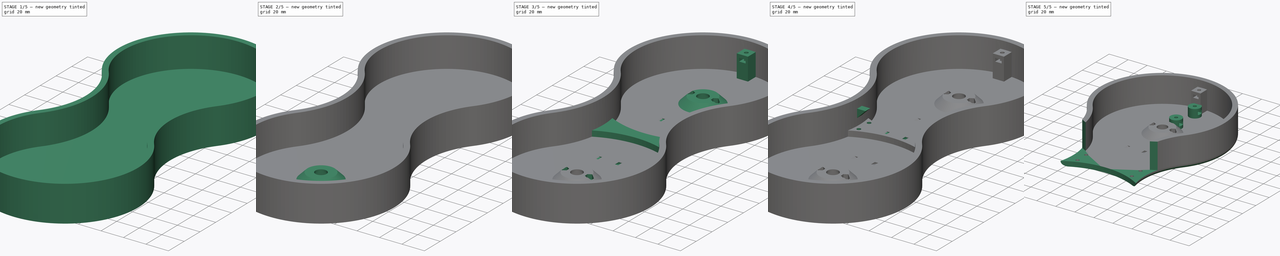
[diagram: build sequence overview — one tinted view per stage of 5, left to right]
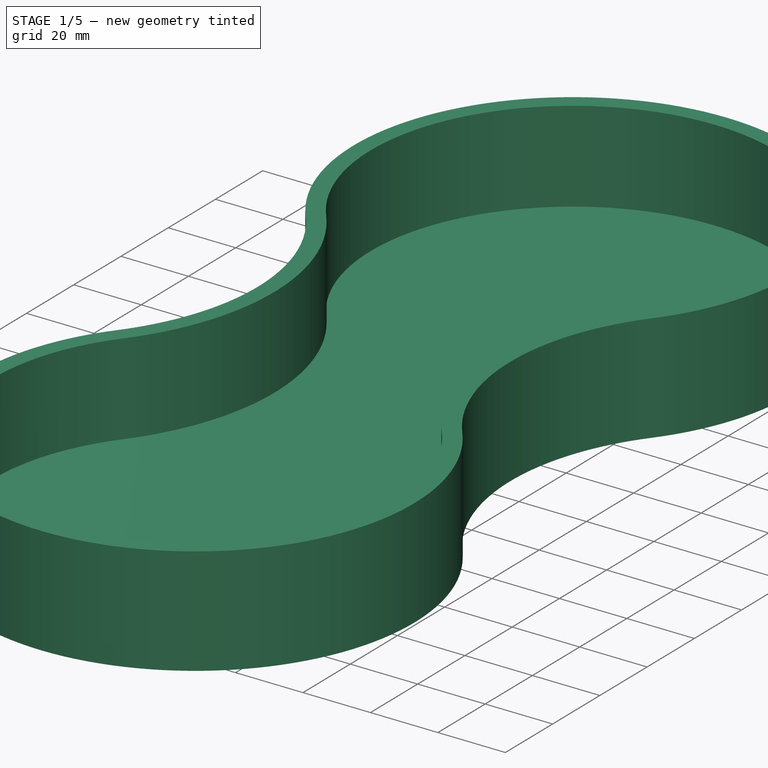
[diagram: stage 1 of 5 — iso view after this stage's code; geometry added in this stage tinted green]
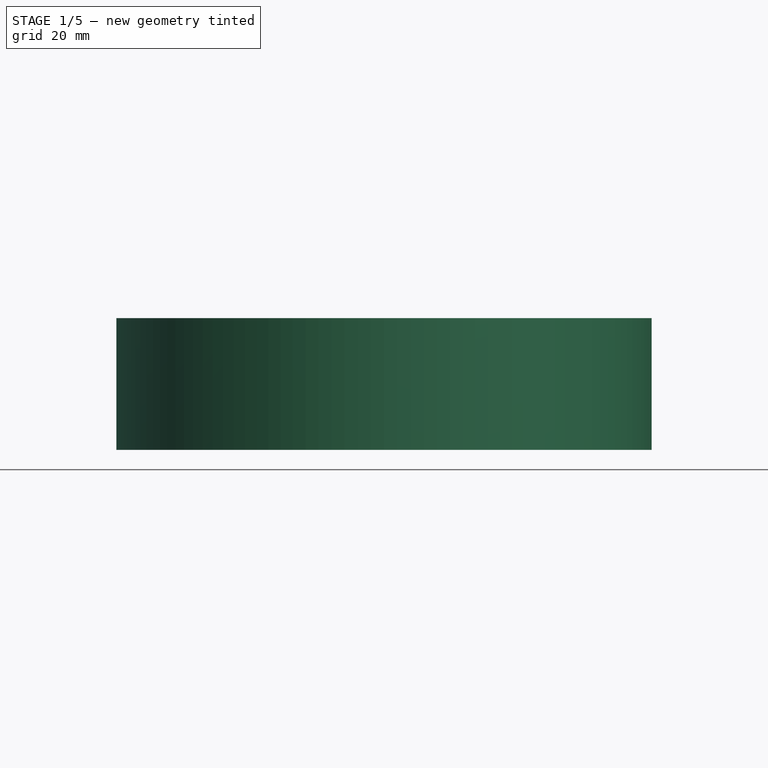
[diagram: stage 1 of 5 — front view after this stage's code; geometry added in this stage tinted green]
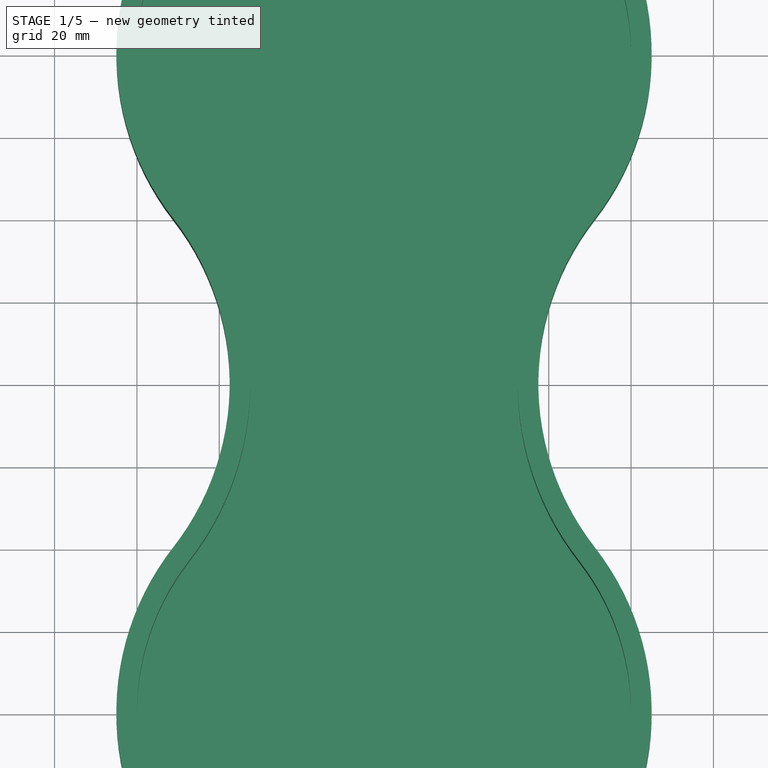
[diagram: stage 1 of 5 — top view after this stage's code; geometry added in this stage tinted green]
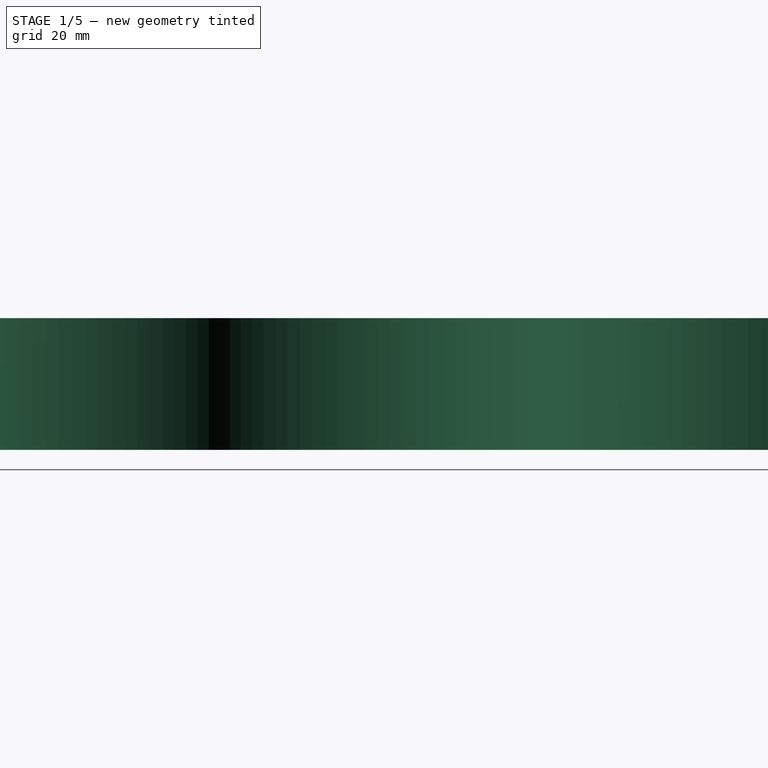
[diagram: stage 1 of 5 — right view after this stage's code; geometry added in this stage tinted green]
FCSTD DOCUMENT  (FreeCAD 0.19R24276 (Git))
Label: Art2BodyB_Splitted_B
License: All rights reserved
LicenseURL: http://en.wikipedia.org/wiki/All_rights_reserved
objects: Sketcher::SketchObject×21, PartDesign::Line×17, PartDesign::Pocket×13, PartDesign::CoordinateSystem×10, PartDesign::Pad×5, PartDesign::Plane×5, PartDesign::Groove×2, PartDesign::Body×2, PartDesign::Thickness×1, Spreadsheet::Sheet×1, PartDesign::Revolution×1, PartDesign::Mirrored×1, PartDesign::LinearPattern×1, PartDesign::PolarPattern×1, PartDesign::MultiTransform×1, PartDesign::Fillet×1, Part::Refine×1, PartDesign::FeatureBase×1
note: 107 computed .brp shape members not serialized (recipe doc carries the construction recipe); baked Part::Feature solids carry a one-line shape summary decoded from their .brp

FEATURE [Sketcher::SketchObject] Sketch
  FullyConstrained = true
  MapMode = 5
  Support = -> [XY_Plane]
  sketch-geometry (4):
    g0: ArcOfCircle CenterX=0 CenterY=0 CenterZ=0 NormalX=0 NormalY=0 NormalZ=1 AngleXU=0 Radius=65 StartAngle=2.47872 EndAngle=6.94606
    g1: ArcOfCircle CenterX=0 CenterY=160 CenterZ=0 NormalX=0 NormalY=0 NormalZ=1 AngleXU=0 Radius=65 StartAngle=5.62031 EndAngle=10.0877
    g2: ArcOfCircle CenterX=102.47 CenterY=80 CenterZ=0 NormalX=0 NormalY=0 NormalZ=1 AngleXU=0 Radius=65 StartAngle=2.47872 EndAngle=3.80447
    g3: ArcOfCircle CenterX=-102.47 CenterY=80 CenterZ=0 NormalX=0 NormalY=0 NormalZ=1 AngleXU=0 Radius=65 StartAngle=5.62031 EndAngle=6.94606
  constraints (11):
    c: Coincident(g0,g-1)
    c: PointOnObject(g1,g-2)
    c: Equal(g3,g0)
    c: Equal(g0,g2)
    c: Equal(g2,g1)
    c: Tangent(g2,g0) = 1.5708
    c: Tangent(g2,g1) = 1.5708
    c: Tangent(g3,g1) = 1.5708
    c: Tangent(g3,g0) = 1.5708
    c: Radius(g0) = 65
    c: DistanceY(g0,g1) = 160
FEATURE [PartDesign::Pad] Pad
  Direction = (1,1,1)
  Length = 32
  Length2 = 100
  Profile = -> Sketch
  Refine = true
  Type = 0
FEATURE [PartDesign::Thickness] Thickness
  Base = -> Pad [Face6]
  BaseFeature = -> Pad
  Intersection = false
  Join = 0
  Mode = 0
  Refine = true
  Reversed = true
  SupportTransform = false
  Value = 5
FEATURE [Sketcher::SketchObject] Sketch001
  ExternalGeometry = -> [Thickness]
  FullyConstrained = true
  MapMode = 5
  Placement = pos=(0,0,5) rot=(0,0,1;0rad)
  Support = -> [Thickness]
  sketch-geometry (4):
    g0: LineSegment StartX=-5 StartY=-59.7913 StartZ=0 EndX=-5 EndY=-50 EndZ=0
    g1: LineSegment StartX=-5 StartY=-50 StartZ=0 EndX=5 EndY=-50 EndZ=0
    g2: LineSegment StartX=5 StartY=-50 StartZ=0 EndX=5 EndY=-59.7913 EndZ=0
    g3: ArcOfCircle CenterX=0 CenterY=0 CenterZ=0 NormalX=0 NormalY=0 NormalZ=1 AngleXU=0 Radius=60 StartAngle=4.62896 EndAngle=4.79582
  constraints (11):
    c: Coincident(g0,g1)
    c: Coincident(g1,g2)
    c: Vertical(g2)
    c: Vertical(g0)
    c: Symmetric(g0,g1,g-2)
    c: DistanceX(g1,g1) = 10
    c: Coincident(g3,g-1)
    c: Coincident(g3,g0)
    c: Coincident(g3,g2)
    c: Equal(g3,g-3)
    c: DistanceY(g1,g3) = 50
FEATURE [PartDesign::Pad] Pad001
  BaseFeature = -> Thickness
  Direction = (1,1,1)
  Length = 20
  Length2 = 100
  Profile = -> Sketch001
  Refine = true
  Type = 0
FEATURE [Sketcher::SketchObject] Sketch002
  ExternalGeometry = -> [Pad001]
  FullyConstrained = true
  MapMode = 5
  Placement = pos=(0,0,25) rot=(0,0,1;0rad)
  Support = -> [Pad001]
  expr: Constraints[2] = Spreadsheet.M3BoltBodyRadius
  sketch-geometry (1):
    g0: Circle CenterX=0 CenterY=-55 CenterZ=0 NormalX=0 NormalY=0 NormalZ=1 AngleXU=0 Radius=1.7
  constraints (3):
    c: PointOnObject(g0,g-2)
    c: DistanceY(g0,g-3) = 5
    c: Radius(g0) = 1.7
FEATURE [Spreadsheet::Sheet] Spreadsheet
  cells = A2=M3BoltBodyRadius; B2(M3BoltBodyRadius)=1.7; A3=M3BoltHeadRadius; B3(M3BoltHeadRadius)=2.95; A4=M3NutCircumradius; B4(M3NutCircumradius)=3.35; A5=M3NutThickness; B5(M3NutThickness)=3; A6=Bearing655ZZBodyRadius; B6(Bearing655ZZBodyRadius)=8.199999999999999; A7=MagnetRadius; B7(MagnetRadius)=4.2; A8=MagnetThickness; B8(MagnetThickness)=1.1
FEATURE [PartDesign::Pocket] Pocket
  BaseFeature = -> Pad001
  Length = 16
  Length2 = 100
  Profile = -> Sketch002
  Refine = true
  Type = 0
FEATURE [PartDesign::Plane] DatumPlane
  AttachmentOffset = pos=(0,0,-4.5) rot=(0,0,1;0rad)
  Length = 168.771
  MapMode = 5
  Placement = pos=(0,0,20.5) rot=(0,0,1;0rad)
  ResizeMode = 0
  Support = -> [Pocket]
  Width = 328.56
FEATURE [Sketcher::SketchObject] Sketch003
  ExternalGeometry = -> [Pocket]
  FullyConstrained = true
  MapMode = 5
  Placement = pos=(0,0,20.5) rot=(0,0,1;0rad)
  Support = -> [DatumPlane]
  expr: Constraints[19] = Spreadsheet.M3NutCircumradius
  sketch-geometry (10):
    g0: LineSegment StartX=0 StartY=-58.35 StartZ=0 EndX=2.90119 EndY=-56.675 EndZ=0
    g1: LineSegment StartX=2.90119 StartY=-56.675 StartZ=0 EndX=2.90119 EndY=-53.325 EndZ=0
    g2: LineSegment StartX=2.90119 StartY=-53.325 StartZ=0 EndX=-2.0779e-12 EndY=-51.65 EndZ=0
    g3: LineSegment StartX=-2.0779e-12 StartY=-51.65 StartZ=0 EndX=-2.90119 EndY=-53.325 EndZ=0
    g4: LineSegment StartX=-2.90119 StartY=-53.325 StartZ=0 EndX=-2.90119 EndY=-56.675 EndZ=0
    g5: LineSegment StartX=-2.90119 StartY=-56.675 StartZ=0 EndX=0 EndY=-58.35 EndZ=0
    g6: Circle CenterX=0 CenterY=-55 CenterZ=0 NormalX=0 NormalY=0 NormalZ=1 AngleXU=0 Radius=3.35
    g7: LineSegment StartX=-2.90119 StartY=-56.675 StartZ=0 EndX=-2.90119 EndY=-46.675 EndZ=0
    g8: LineSegment StartX=-2.90119 StartY=-46.675 StartZ=0 EndX=2.90119 EndY=-46.675 EndZ=0
    g9: LineSegment StartX=2.90119 StartY=-46.675 StartZ=0 EndX=2.90119 EndY=-56.675 EndZ=0
  constraints (24):
    c: Coincident(g0,g1)
    c: Coincident(g1,g2)
    c: Coincident(g2,g3)
    c: Coincident(g3,g4)
    c: Coincident(g4,g5)
    c: Coincident(g5,g0)
    c: Equal(g0, g1-g5) x5
    c: PointOnObject(g0,g6)
    c: PointOnObject(g1,g6)
    c: PointOnObject(g2,g6)
    c: PointOnObject(g3,g6)
    c: PointOnObject(g4,g6)
    c: PointOnObject(g5,g6)
    c: Coincident(g6,g-3)
    c: PointOnObject(g5,g-2)
    c: Radius(g6) = 3.35
    c: Coincident(g5,g7)
    c: Vertical(g7)
    c: Coincident(g7,g8)
    c: Horizontal(g8)
    c: Coincident(g8,g9)
    c: Coincident(g9,g0)
    c: Vertical(g9)
    c: DistanceY(g9,g9) = 10
FEATURE [PartDesign::Pocket] Pocket001
  BaseFeature = -> Pocket
  Length = 3
  Length2 = 100
  Midplane = true
  Profile = -> Sketch003
  Refine = true
  Type = 0
  expr: Length = Spreadsheet.M3NutThickness
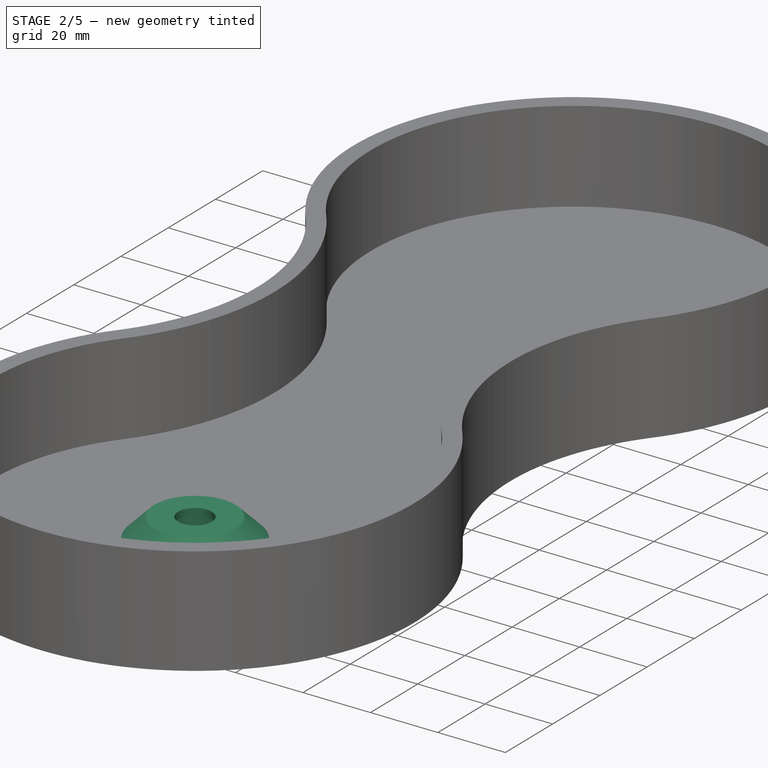
[diagram: stage 2 of 5 — iso view after this stage's code; geometry added in this stage tinted green]
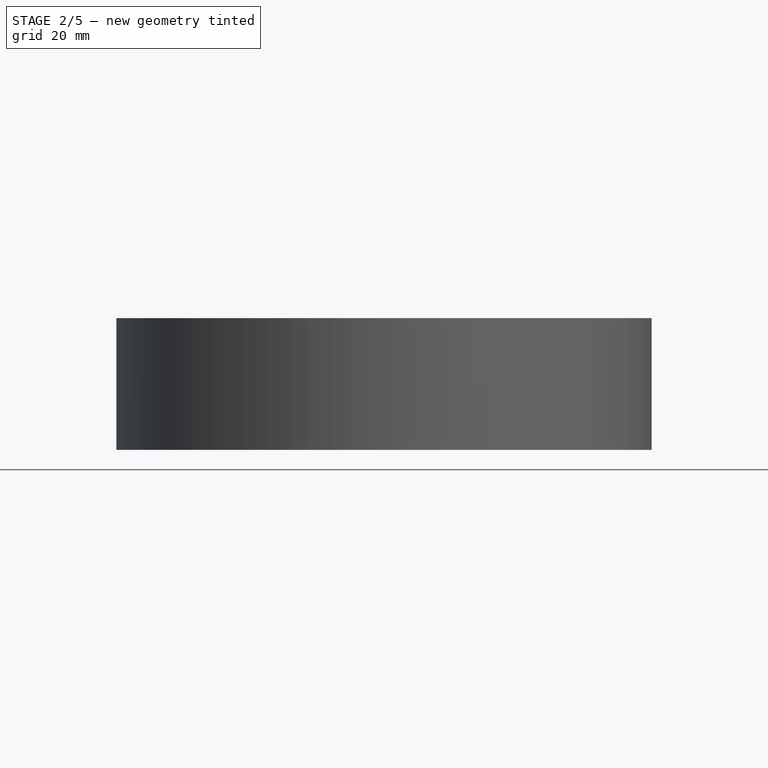
[diagram: stage 2 of 5 — front view after this stage's code; geometry added in this stage tinted green]
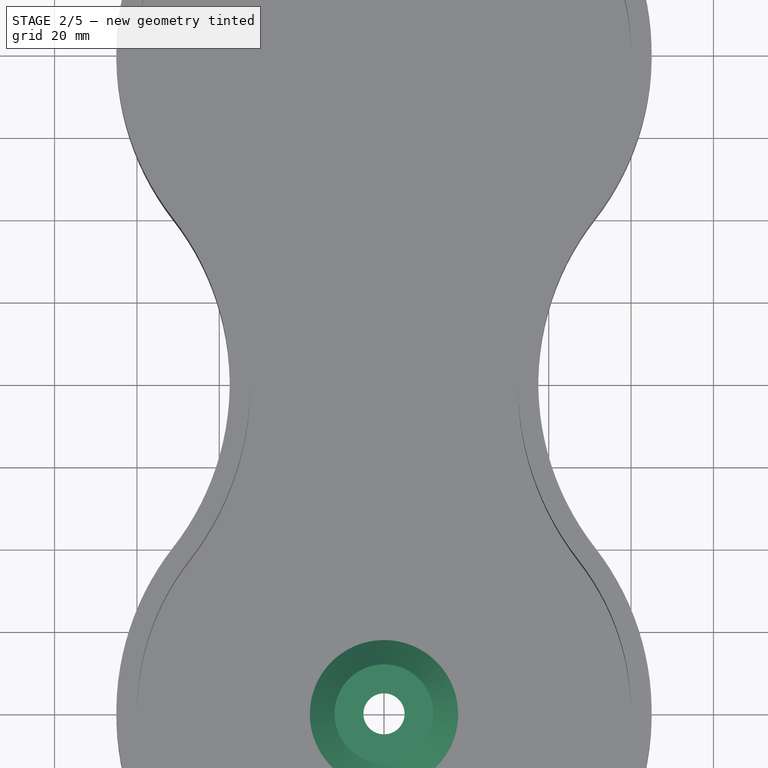
[diagram: stage 2 of 5 — top view after this stage's code; geometry added in this stage tinted green]
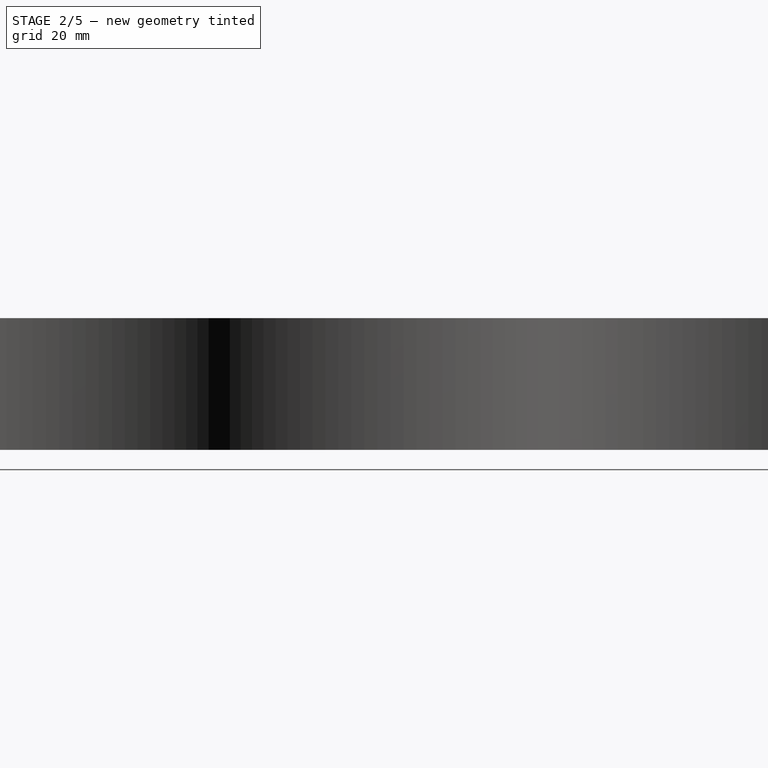
[diagram: stage 2 of 5 — right view after this stage's code; geometry added in this stage tinted green]
FEATURE [Sketcher::SketchObject] Sketch005
  ExternalGeometry = -> [Pocket001]
  FullyConstrained = true
  MapMode = 5
  Placement = pos=(0,0,0) rot=(1,0,0;1.5708rad)
  Support = -> [XZ_Plane]
  sketch-geometry (4):
    g0: LineSegment StartX=18 StartY=5 StartZ=0 EndX=12 EndY=11 EndZ=0
    g1: LineSegment StartX=12 StartY=11 StartZ=0 EndX=0 EndY=11 EndZ=0
    g2: LineSegment StartX=0 StartY=11 StartZ=0 EndX=0 EndY=5 EndZ=0
    g3: LineSegment StartX=0 StartY=5 StartZ=0 EndX=18 EndY=5 EndZ=0
  constraints (12):
    c: PointOnObject(g0,g-3)
    c: Coincident(g0,g1)
    c: Horizontal(g1)
    c: Coincident(g1,g2)
    c: Vertical(g2)
    c: Coincident(g2,g3)
    c: Horizontal(g3)
    c: PointOnObject(g1,g-2)
    c: DistanceX(g1,g1) = 12
    c: DistanceY(g2,g2) = 6
    c: Coincident(g3,g0)
    c: Angle(g0,g3) = 0.785398
FEATURE [PartDesign::Revolution] Revolution
  Angle = 360
  Axis = (0,2e-16,1)
  Base = (0,0,0)
  BaseFeature = -> Pocket001
  Profile = -> Sketch005
  ReferenceAxis = -> Sketch005 [V_Axis]
  Refine = true
  Reversed = true
FEATURE [Sketcher::SketchObject] Sketch006
  FullyConstrained = true
  MapMode = 5
  Placement = pos=(0,2.4e-15,11) rot=(0,0,1;0rad)
  Support = -> [Revolution]
  sketch-geometry (1):
    g0: Circle CenterX=0 CenterY=0 CenterZ=0 NormalX=0 NormalY=0 NormalZ=1 AngleXU=0 Radius=5
  constraints (2):
    c: Coincident(g0,g-1)
    c: Radius(g0) = 5
FEATURE [PartDesign::Pocket] Pocket002
  BaseFeature = -> Revolution
  Length = 5
  Length2 = 100
  Profile = -> Sketch006
  Refine = true
  Type = 1
FEATURE [Sketcher::SketchObject] Sketch007
  ExternalGeometry = -> [Pocket002]
  FullyConstrained = true
  MapMode = 5
  Placement = pos=(0,0,0) rot=(1,0,0;3.14159rad)
  Support = -> [Pocket002]
  sketch-geometry (1):
    g0: Circle CenterX=0 CenterY=0 CenterZ=0 NormalX=0 NormalY=0 NormalZ=1 AngleXU=0 Radius=8.2
  constraints (2):
    c: Coincident(g0,g-1)
    c: Radius(g0) = 8.2
FEATURE [PartDesign::Pocket] Pocket003
  BaseFeature = -> Pocket002
  Length = 9
  Length2 = 100
  Profile = -> Sketch007
  Refine = true
  Type = 0
FEATURE [Sketcher::SketchObject] Sketch008
  FullyConstrained = true
  MapMode = 5
  Placement = pos=(0,0,0) rot=(1,0,0;3.14159rad)
  Support = -> [Pocket003]
  sketch-geometry (4):
    g0: LineSegment StartX=-15.3 StartY=3.5 StartZ=0 EndX=15.3 EndY=3.5 EndZ=0
    g1: LineSegment StartX=15.3 StartY=3.5 StartZ=0 EndX=15.3 EndY=-3.5 EndZ=0
    g2: LineSegment StartX=15.3 StartY=-3.5 StartZ=0 EndX=-15.3 EndY=-3.5 EndZ=0
    g3: LineSegment StartX=-15.3 StartY=-3.5 StartZ=0 EndX=-15.3 EndY=3.5 EndZ=0
  constraints (10):
    c: Coincident(g0,g1)
    c: Coincident(g1,g2)
    c: Coincident(g2,g3)
    c: Coincident(g3,g0)
    c: Horizontal(g0)
    c: Vertical(g3)
    c: Symmetric(g1,g0,g-1)
    c: Symmetric(g1,g2,g-2)
    c: DistanceX(g2,g2) = 30.6
    c: DistanceY(g3,g3) = 7
FEATURE [PartDesign::Pocket] Pocket004
  BaseFeature = -> Pocket003
  Length = 4
  Length2 = 100
  Profile = -> Sketch008
  Refine = true
  Type = 0
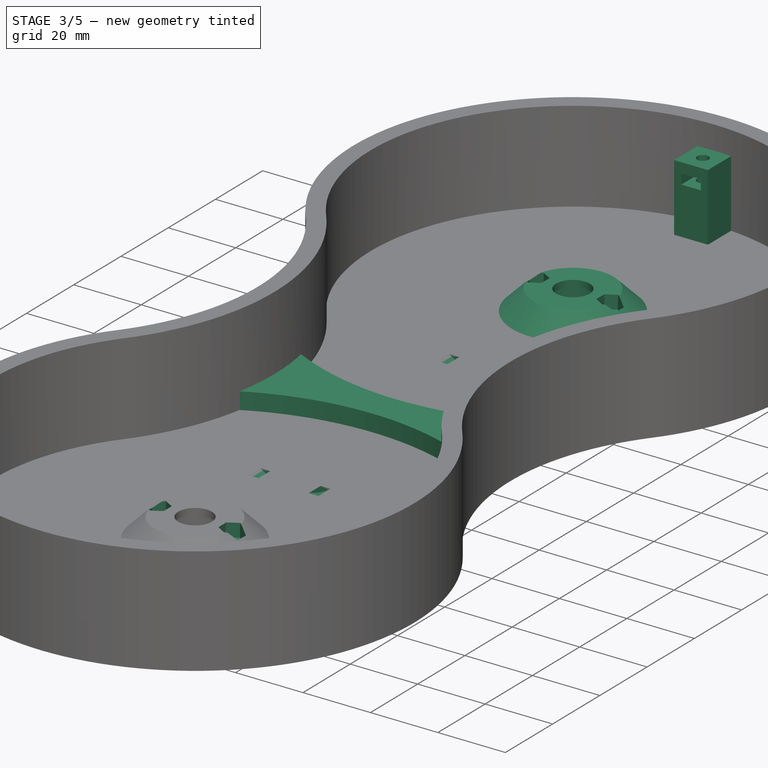
[diagram: stage 3 of 5 — iso view after this stage's code; geometry added in this stage tinted green]
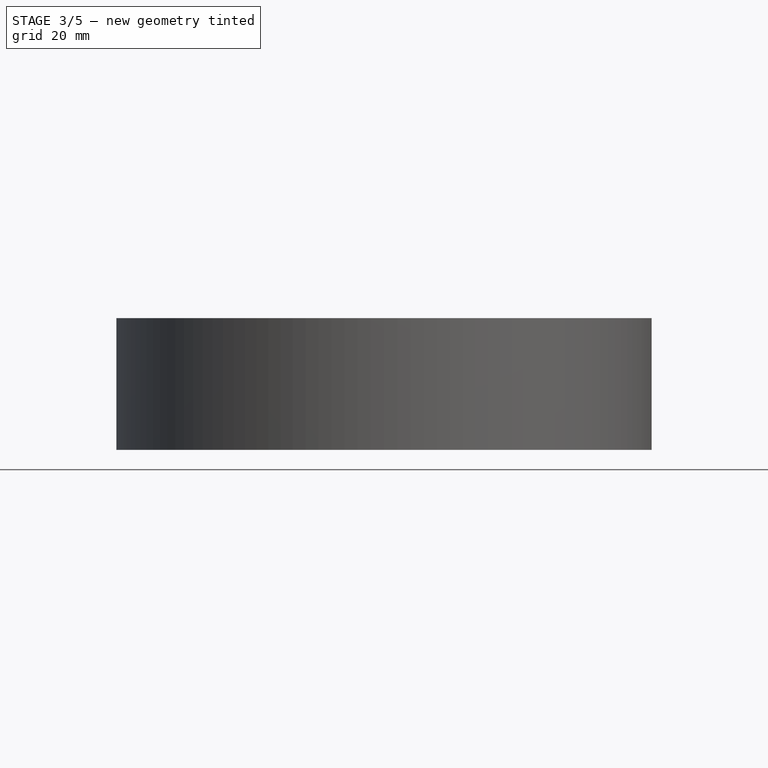
[diagram: stage 3 of 5 — front view after this stage's code; geometry added in this stage tinted green]
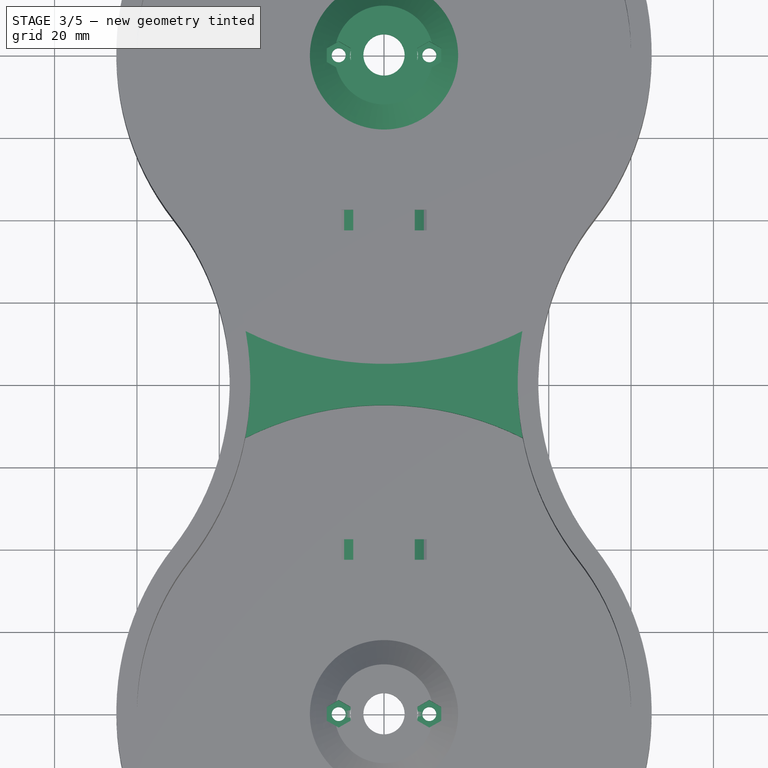
[diagram: stage 3 of 5 — top view after this stage's code; geometry added in this stage tinted green]
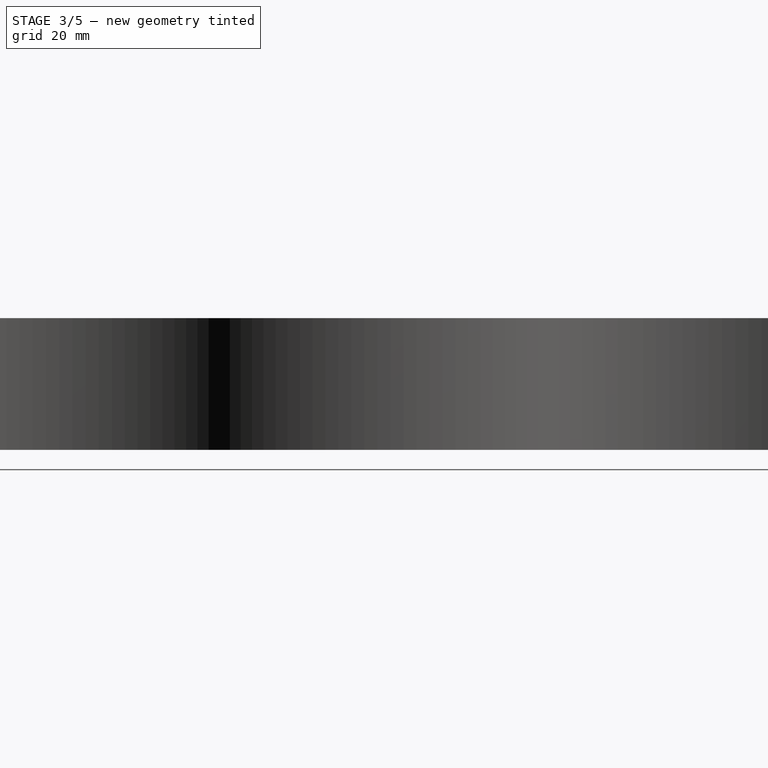
[diagram: stage 3 of 5 — right view after this stage's code; geometry added in this stage tinted green]
FEATURE [Sketcher::SketchObject] Sketch009
  FullyConstrained = true
  MapMode = 5
  Placement = pos=(0,0,4) rot=(1,0,0;3.14159rad)
  Support = -> [Pocket004]
  expr: Constraints[2] = Spreadsheet.M3BoltBodyRadius
  sketch-geometry (2):
    g0: Circle CenterX=-11 CenterY=0 CenterZ=0 NormalX=0 NormalY=0 NormalZ=1 AngleXU=0 Radius=1.7
    g1: Circle CenterX=11 CenterY=0 CenterZ=0 NormalX=0 NormalY=0 NormalZ=1 AngleXU=0 Radius=1.7
  constraints (5):
    c: PointOnObject(g0,g-1)
    c: Equal(g1,g0)
    c: Radius(g0) = 1.7
    c: DistanceX(g0,g1) = 22
    c: Symmetric(g1,g0,g-2)
FEATURE [PartDesign::Pocket] Pocket005
  BaseFeature = -> Pocket004
  Length = 5
  Length2 = 100
  Profile = -> Sketch009
  Refine = true
  Type = 1
FEATURE [Sketcher::SketchObject] Sketch010
  ExternalGeometry = -> [Pocket005]
  FullyConstrained = true
  MapMode = 5
  Placement = pos=(0,2.4e-15,11) rot=(0,0,1;0rad)
  Support = -> [Pocket005]
  expr: Constraints[39] = Spreadsheet.M3NutCircumradius
  sketch-geometry (14):
    g0: LineSegment StartX=-8.09881 StartY=1.675 StartZ=0 EndX=-11 EndY=3.35 EndZ=0
    g1: LineSegment StartX=-11 StartY=3.35 StartZ=0 EndX=-13.9012 EndY=1.675 EndZ=0
    g2: LineSegment StartX=-13.9012 StartY=1.675 StartZ=0 EndX=-13.9012 EndY=-1.675 EndZ=0
    g3: LineSegment StartX=-13.9012 StartY=-1.675 StartZ=0 EndX=-11 EndY=-3.35 EndZ=0
    g4: LineSegment StartX=-11 StartY=-3.35 StartZ=0 EndX=-8.09881 EndY=-1.675 EndZ=0
    g5: LineSegment StartX=-8.09881 StartY=-1.675 StartZ=0 EndX=-8.09881 EndY=1.675 EndZ=0
    g6: Circle CenterX=-11 CenterY=-2.4e-15 CenterZ=0 NormalX=0 NormalY=0 NormalZ=1 AngleXU=0 Radius=3.35
    g7: LineSegment StartX=8.09881 StartY=1.675 StartZ=0 EndX=8.09881 EndY=-1.675 EndZ=0
    g8: LineSegment StartX=8.09881 StartY=-1.675 StartZ=0 EndX=11 EndY=-3.35 EndZ=0
    g9: LineSegment StartX=11 StartY=-3.35 StartZ=0 EndX=13.9012 EndY=-1.675 EndZ=0
    g10: LineSegment StartX=13.9012 StartY=-1.675 StartZ=0 EndX=13.9012 EndY=1.675 EndZ=0
    g11: LineSegment StartX=13.9012 StartY=1.675 StartZ=0 EndX=11 EndY=3.35 EndZ=0
    g12: LineSegment StartX=11 StartY=3.35 StartZ=0 EndX=8.09881 EndY=1.675 EndZ=0
    g13: Circle CenterX=11 CenterY=-2.4e-15 CenterZ=0 NormalX=0 NormalY=0 NormalZ=1 AngleXU=0 Radius=3.35
  constraints (32):
    c: Coincident(g0,g1)
    c: Coincident(g1,g2)
    c: Coincident(g2,g3)
    c: Coincident(g3,g4)
    c: Coincident(g4,g5)
    c: Coincident(g5,g0)
    c: Equal(g0, g1-g5) x5
    c: PointOnObject(g0,g6)
    c: PointOnObject(g1,g6)
    c: PointOnObject(g2,g6)
    c: PointOnObject(g3,g6)
    c: PointOnObject(g4,g6)
    c: PointOnObject(g5,g6)
    c: Coincident(g6,g-3)
    c: Coincident(g7,g8)
    c: Coincident(g8,g9)
    c: Coincident(g9,g10)
    c: Coincident(g10,g11)
    c: Coincident(g11,g12)
    c: Coincident(g12,g7)
    c: Equal(g7, g8-g12) x5
    c: PointOnObject(g7,g13)
    c: PointOnObject(g8,g13)
    c: PointOnObject(g9,g13)
    c: PointOnObject(g10,g13)
    c: PointOnObject(g11,g13)
    c: PointOnObject(g12,g13)
    c: Coincident(g13,g-4)
    c: Vertical(g5)
    c: Vertical(g7)
    c: Equal(g13,g6)
    c: Radius(g6) = 3.35
FEATURE [PartDesign::Pocket] Pocket006
  BaseFeature = -> Pocket005
  Length = 4
  Length2 = 100
  Profile = -> Sketch010
  Refine = true
  Type = 0
FEATURE [PartDesign::Plane] DatumPlane001
  Length = 315.452
  MapMode = 5
  Placement = pos=(0,0,0) rot=(0.57735,0.57735,0.57735;2.0944rad)
  ResizeMode = 0
  Support = -> [YZ_Plane]
  Width = 82.7027
FEATURE [Sketcher::SketchObject] Sketch011
  ExternalGeometry = -> [Pocket006]
  FullyConstrained = true
  MapMode = 5
  Placement = pos=(0,0,0) rot=(0.57735,0.57735,0.57735;2.0944rad)
  Support = -> [DatumPlane001]
  sketch-geometry (4):
    g0: LineSegment StartX=37.5 StartY=3.25 StartZ=0 EndX=42.5 EndY=3.25 EndZ=0
    g1: LineSegment StartX=42.5 StartY=3.25 StartZ=0 EndX=42.5 EndY=1.75 EndZ=0
    g2: LineSegment StartX=42.5 StartY=1.75 StartZ=0 EndX=37.5 EndY=1.75 EndZ=0
    g3: LineSegment StartX=37.5 StartY=1.75 StartZ=0 EndX=37.5 EndY=3.25 EndZ=0
  constraints (12):
    c: Coincident(g0,g1)
    c: Coincident(g1,g2)
    c: Coincident(g2,g3)
    c: Coincident(g3,g0)
    c: Horizontal(g0)
    c: Horizontal(g2)
    c: Vertical(g1)
    c: Vertical(g3)
    c: DistanceY(g3,g3) = 1.5
    c: DistanceX(g2,g2) = 5
    c: DistanceX(g-1,g2) = 37.5
    c: DistanceY(g-1,g2) = 1.75
FEATURE [PartDesign::Line] DatumLine
  AttacherType = Attacher::AttachEngineLine
  AttachmentOffset = pos=(0,20,0) rot=(0,0,1;0rad)
  Length = 20
  MapMode = 29
  Placement = pos=(0,4.4e-15,20) rot=(0,0.707107,0.707107;3.14159rad)
  ResizeMode = 0
  Support = -> [Y_Axis]
FEATURE [PartDesign::Groove] Groove
  Angle = 360
  Axis = (1e-16,1,-2e-16)
  Base = (0,4.4e-15,20)
  BaseFeature = -> Pocket006
  Profile = -> Sketch011
  ReferenceAxis = -> DatumLine
  Refine = true
FEATURE [PartDesign::Plane] DatumPlane002
  AttachmentOffset = pos=(0,0,80) rot=(0,0,1;0rad)
  Length = 147.174
  MapMode = 2
  Placement = pos=(8.9e-15,80,20) rot=(0,0.707107,0.707107;3.14159rad)
  ResizeMode = 0
  Support = -> [DatumLine]
  Width = 74.2136
FEATURE [PartDesign::Mirrored] Mirrored
  BaseFeature = -> Groove
  MirrorPlane = -> DatumPlane002
  Originals = -> [Pad001,Pocket,Pocket001,Revolution,Pocket002,Pocket003,Pocket004,Pocket005,Pocket006,Groove]
  Refine = true
FEATURE [Sketcher::SketchObject] Sketch012
  ExternalGeometry = -> [Mirrored]
  FullyConstrained = true
  MapMode = 5
  Placement = pos=(0,0,5) rot=(0,0,1;0rad)
  Support = -> [Mirrored]
  sketch-geometry (4):
    g0: ArcOfCircle CenterX=102.47 CenterY=80 CenterZ=0 NormalX=0 NormalY=0 NormalZ=1 AngleXU=0 Radius=70 StartAngle=2.95493 EndAngle=3.32825
    g1: ArcOfCircle CenterX=-102.47 CenterY=80 CenterZ=0 NormalX=0 NormalY=0 NormalZ=1 AngleXU=0 Radius=70 StartAngle=6.09653 EndAngle=6.46984
    g2: ArcOfCircle CenterX=0 CenterY=0 CenterZ=0 NormalX=0 NormalY=0 NormalZ=1 AngleXU=0 Radius=75 StartAngle=1.10499 EndAngle=2.0366
    g3: ArcOfCircle CenterX=0 CenterY=160 CenterZ=0 NormalX=0 NormalY=0 NormalZ=1 AngleXU=0 Radius=75 StartAngle=4.24659 EndAngle=5.17819
  constraints (12):
    c: Coincident(g0,g-4)
    c: Coincident(g1,g-3)
    c: Equal(g1,g-3)
    c: Equal(g0,g-4)
    c: Coincident(g2,g-1)
    c: Coincident(g2,g1)
    c: Coincident(g2,g0)
    c: Coincident(g3,g-6)
    c: Coincident(g3,g1)
    c: Coincident(g3,g0)
    c: Equal(g2,g3)
    c: Radius(g3) = 75
FEATURE [PartDesign::Pad] Pad002
  BaseFeature = -> Mirrored
  Direction = (1,1,1)
  Length = 5
  Length2 = 100
  Profile = -> Sketch012
  Refine = true
  Type = 0
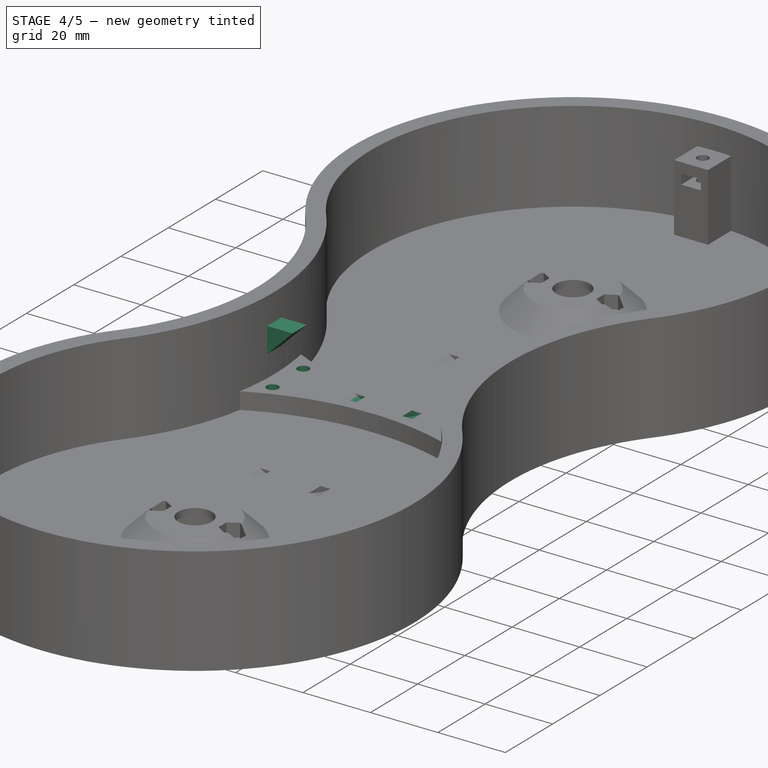
[diagram: stage 4 of 5 — iso view after this stage's code; geometry added in this stage tinted green]
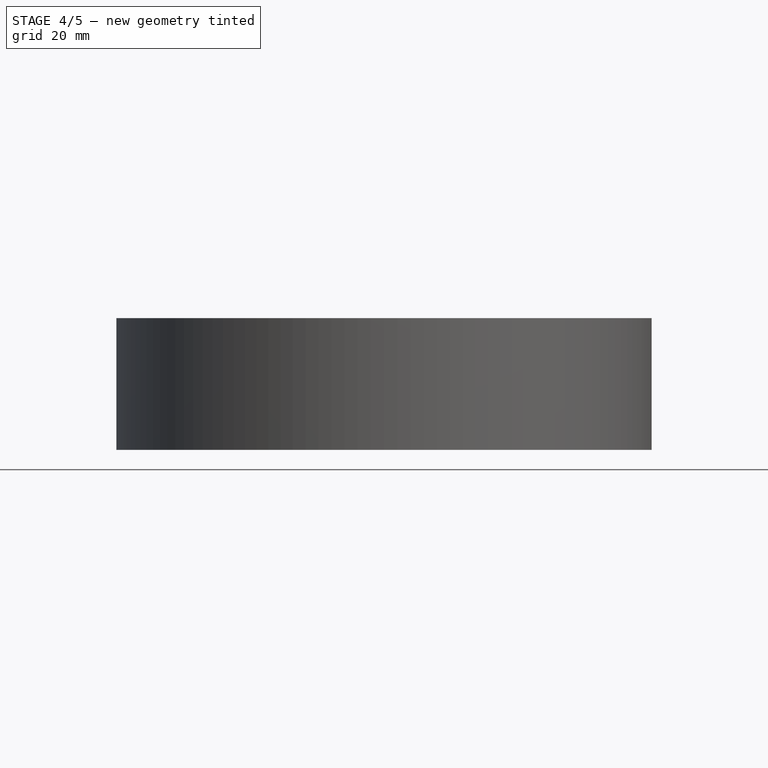
[diagram: stage 4 of 5 — front view after this stage's code; geometry added in this stage tinted green]
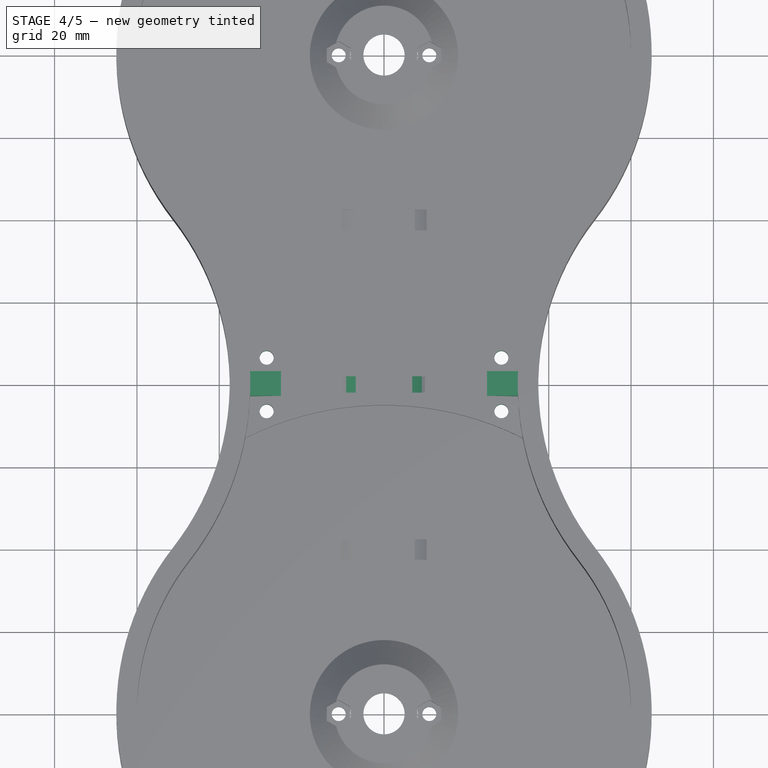
[diagram: stage 4 of 5 — top view after this stage's code; geometry added in this stage tinted green]
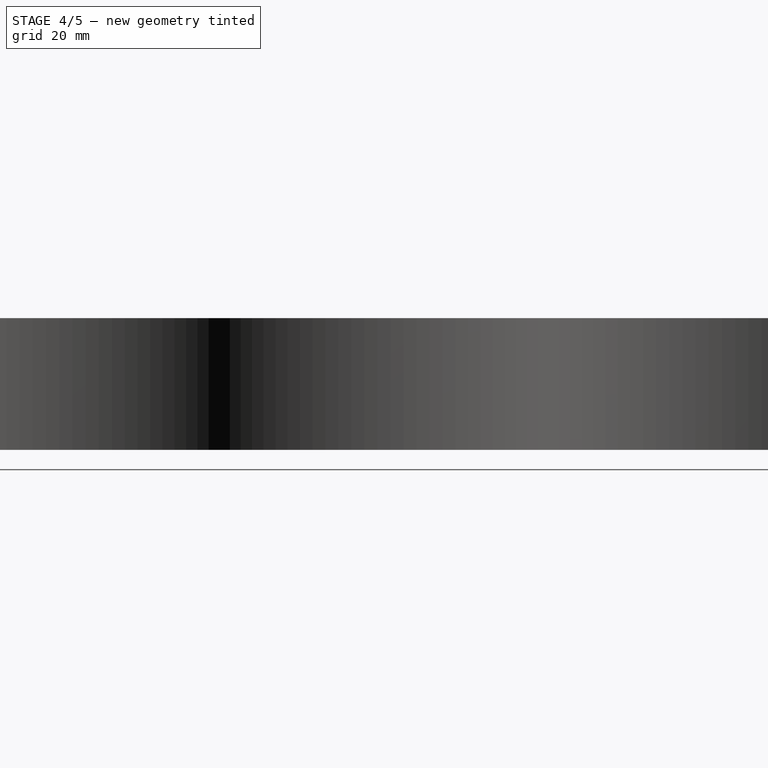
[diagram: stage 4 of 5 — right view after this stage's code; geometry added in this stage tinted green]
FEATURE [PartDesign::Plane] DatumPlane003
  Length = 315.452
  MapMode = 5
  Placement = pos=(0,0,0) rot=(0.57735,0.57735,0.57735;2.0944rad)
  ResizeMode = 0
  Support = -> [YZ_Plane]
  Width = 82.7027
FEATURE [Sketcher::SketchObject] Sketch013
  ExternalGeometry = -> [Pad002]
  FullyConstrained = true
  MapMode = 5
  Placement = pos=(0,0,0) rot=(0.57735,0.57735,0.57735;2.0944rad)
  Support = -> [YZ_Plane]
  sketch-geometry (4):
    g0: LineSegment StartX=78 StartY=8.5 StartZ=0 EndX=82 EndY=8.5 EndZ=0
    g1: LineSegment StartX=82 StartY=8.5 StartZ=0 EndX=82 EndY=7 EndZ=0
    g2: LineSegment StartX=82 StartY=7 StartZ=0 EndX=78 EndY=7 EndZ=0
    g3: LineSegment StartX=78 StartY=7 StartZ=0 EndX=78 EndY=8.5 EndZ=0
  constraints (12):
    c: Coincident(g0,g1)
    c: Coincident(g1,g2)
    c: Coincident(g2,g3)
    c: Coincident(g3,g0)
    c: Horizontal(g0)
    c: Horizontal(g2)
    c: Vertical(g1)
    c: Vertical(g3)
    c: DistanceX(g2,g2) = 4
    c: DistanceY(g1,g1) = 1.5
    c: DistanceX(g-1,g2) = 78
    c: DistanceY(g-1,g2) = 7
FEATURE [PartDesign::Line] DatumLine001
  AttacherType = Attacher::AttachEngineLine
  AttachmentOffset = pos=(0,25,0) rot=(0,0,1;0rad)
  Length = 20
  MapMode = 29
  Placement = pos=(0,5.6e-15,25) rot=(0,0.707107,0.707107;3.14159rad)
  ResizeMode = 0
  Support = -> [Y_Axis]
FEATURE [PartDesign::Groove] Groove001
  Angle = 360
  Axis = (1e-16,1,-2e-16)
  Base = (0,5.6e-15,25)
  BaseFeature = -> Pad002
  Profile = -> Sketch013
  ReferenceAxis = -> DatumLine001
  Refine = true
FEATURE [Sketcher::SketchObject] Sketch014
  FullyConstrained = true
  MapMode = 5
  Placement = pos=(0,0,10) rot=(0,0,1;0rad)
  Support = -> [Groove001]
  expr: Constraints[17] = Spreadsheet.M3BoltBodyRadius
  sketch-geometry (8):
    g0: LineSegment StartX=-28.5 StartY=86.5 StartZ=0 EndX=28.5 EndY=86.5 EndZ=0
    g1: LineSegment StartX=28.5 StartY=86.5 StartZ=0 EndX=28.5 EndY=73.5 EndZ=0
    g2: LineSegment StartX=28.5 StartY=73.5 StartZ=0 EndX=-28.5 EndY=73.5 EndZ=0
    g3: LineSegment StartX=-28.5 StartY=73.5 StartZ=0 EndX=-28.5 EndY=86.5 EndZ=0
    g4: Circle CenterX=-28.5 CenterY=86.5 CenterZ=0 NormalX=0 NormalY=0 NormalZ=1 AngleXU=0 Radius=1.7
    g5: Circle CenterX=-28.5 CenterY=73.5 CenterZ=0 NormalX=0 NormalY=0 NormalZ=1 AngleXU=0 Radius=1.7
    g6: Circle CenterX=28.5 CenterY=86.5 CenterZ=0 NormalX=0 NormalY=0 NormalZ=1 AngleXU=0 Radius=1.7
    g7: Circle CenterX=28.5 CenterY=73.5 CenterZ=0 NormalX=0 NormalY=0 NormalZ=1 AngleXU=0 Radius=1.7
  constraints (19):
    c: Coincident(g0,g1)
    c: Coincident(g1,g2)
    c: Coincident(g2,g3)
    c: Coincident(g3,g0)
    c: Horizontal(g0)
    c: Vertical(g1)
    c: Vertical(g3)
    c: Symmetric(g2,g1,g-2)
    c: DistanceY(g3,g3) = 13
    c: DistanceX(g2,g2) = 57
    c: Coincident(g4,g0)
    c: Coincident(g5,g2)
    c: Coincident(g6,g0)
    c: Coincident(g7,g1)
    c: Equal(g7,g6)
    c: Equal(g6,g4)
    c: Equal(g4,g5)
    c: Radius(g5) = 1.7
    c: DistanceY(g-1,g7) = 73.5
FEATURE [PartDesign::Pocket] Pocket007
  BaseFeature = -> Groove001
  Length = 5
  Length2 = 100
  Profile = -> Sketch014
  Refine = true
  Type = 1
FEATURE [Sketcher::SketchObject] Sketch015
  ExternalGeometry = -> [Pocket007]
  FullyConstrained = true
  MapMode = 5
  Placement = pos=(0,0,0) rot=(1,0,0;3.14159rad)
  Support = -> [Pocket007]
  expr: Constraints[7] = Spreadsheet.M3BoltHeadRadius
  sketch-geometry (4):
    g0: Circle CenterX=-28.5 CenterY=-73.5 CenterZ=0 NormalX=0 NormalY=0 NormalZ=1 AngleXU=0 Radius=2.95
    g1: Circle CenterX=-28.5 CenterY=-86.5 CenterZ=0 NormalX=0 NormalY=0 NormalZ=1 AngleXU=0 Radius=2.95
    g2: Circle CenterX=28.5 CenterY=-86.5 CenterZ=0 NormalX=0 NormalY=0 NormalZ=1 AngleXU=0 Radius=2.95
    g3: Circle CenterX=28.5 CenterY=-73.5 CenterZ=0 NormalX=0 NormalY=0 NormalZ=1 AngleXU=0 Radius=2.95
  constraints (8):
    c: Coincident(g0,g-3)
    c: Coincident(g1,g-4)
    c: Coincident(g2,g-6)
    c: Coincident(g3,g-5)
    c: Equal(g3,g2)
    c: Equal(g2,g1)
    c: Equal(g1,g0)
    c: Radius(g0) = 2.95
FEATURE [PartDesign::Pocket] Pocket008
  BaseFeature = -> Pocket007
  Length = 2.9
  Length2 = 100
  Profile = -> Sketch015
  Refine = true
  Type = 0
FEATURE [Sketcher::SketchObject] Sketch016
  ExternalGeometry = -> [Pocket008]
  FullyConstrained = true
  MapMode = 5
  Placement = pos=(8.9e-15,80,20) rot=(0,0.707107,0.707107;3.14159rad)
  Support = -> [DatumPlane002]
  sketch-geometry (6):
    g0: LineSegment StartX=-35 StartY=4 StartZ=0 EndX=-25 EndY=4 EndZ=0
    g1: LineSegment StartX=-25 StartY=4 StartZ=0 EndX=-35 EndY=-6 EndZ=0
    g2: LineSegment StartX=-35 StartY=-6 StartZ=0 EndX=-35 EndY=4 EndZ=0
    g3: LineSegment StartX=25 StartY=4 StartZ=0 EndX=35 EndY=4 EndZ=0
    g4: LineSegment StartX=35 StartY=4 StartZ=0 EndX=35 EndY=-6 EndZ=0
    g5: LineSegment StartX=35 StartY=-6 StartZ=0 EndX=25 EndY=4 EndZ=0
  constraints (17):
    c: Horizontal(g0)
    c: Coincident(g0,g1)
    c: Coincident(g1,g2)
    c: Coincident(g2,g0)
    c: Vertical(g2)
    c: Horizontal(g3)
    c: Coincident(g3,g4)
    c: Vertical(g4)
    c: Coincident(g4,g5)
    c: Coincident(g5,g3)
    c: DistanceX(g0,g3) = 50
    c: Symmetric(g0,g3,g-2)
    c: Equal(g0,g3)
    c: Equal(g2,g4)
    c: Angle(g0,g1) = 0.785398
    c: DistanceX(g0,g0) = 10
    c: DistanceY(g0,g-3) = 8
FEATURE [PartDesign::Pad] Pad003
  BaseFeature = -> Pocket008
  Direction = (1,1,1)
  Length = 6
  Length2 = 100
  Midplane = true
  Profile = -> Sketch016
  Refine = true
  Type = 0
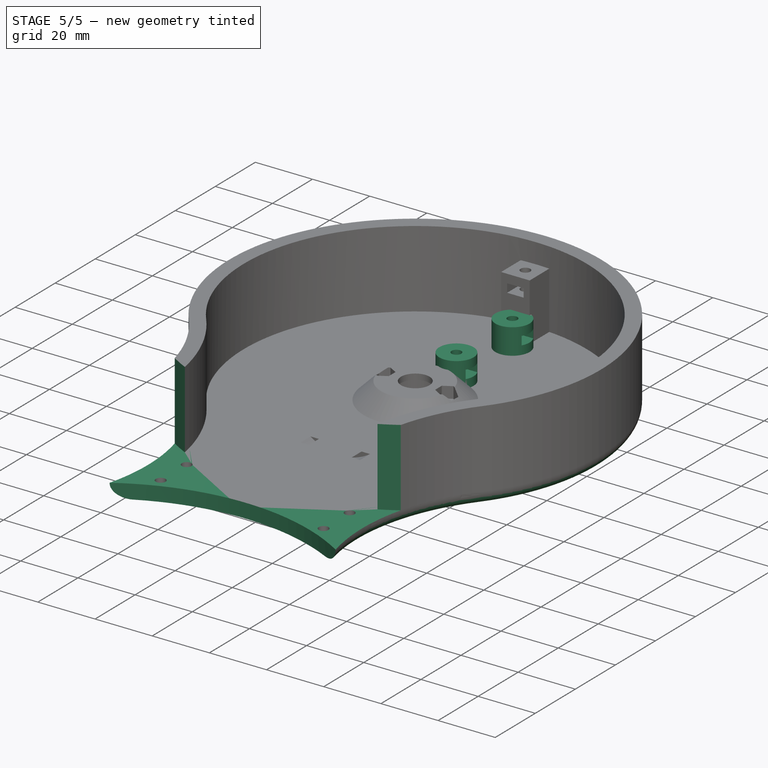
[diagram: stage 5 of 5 — iso view after this stage's code; geometry added in this stage tinted green]
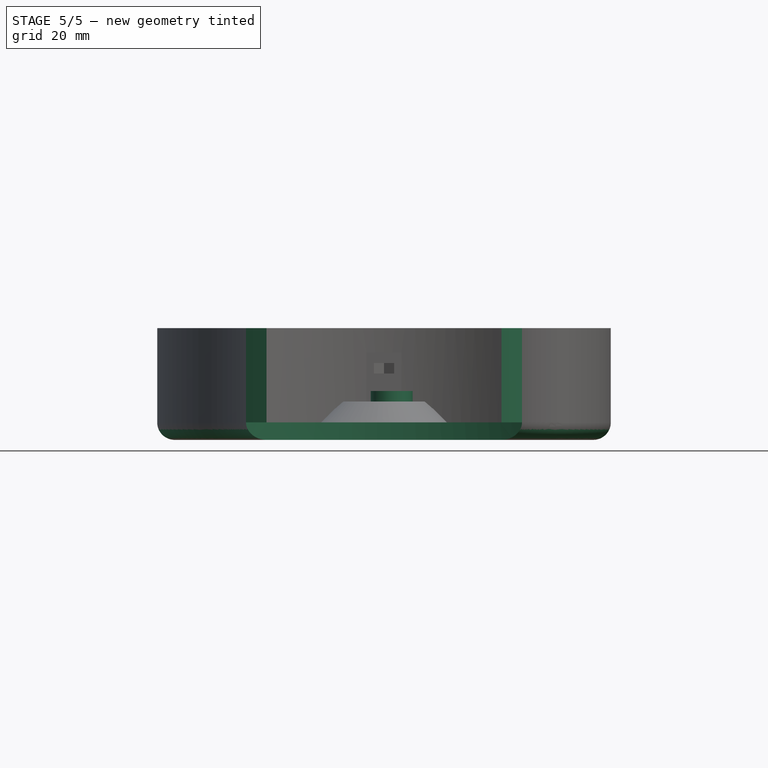
[diagram: stage 5 of 5 — front view after this stage's code; geometry added in this stage tinted green]
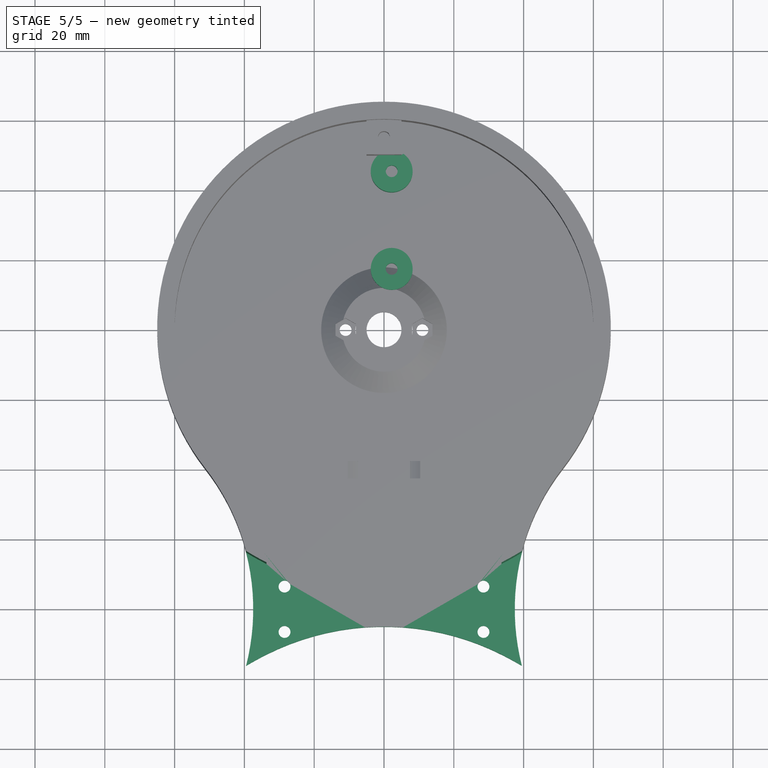
[diagram: stage 5 of 5 — top view after this stage's code; geometry added in this stage tinted green]
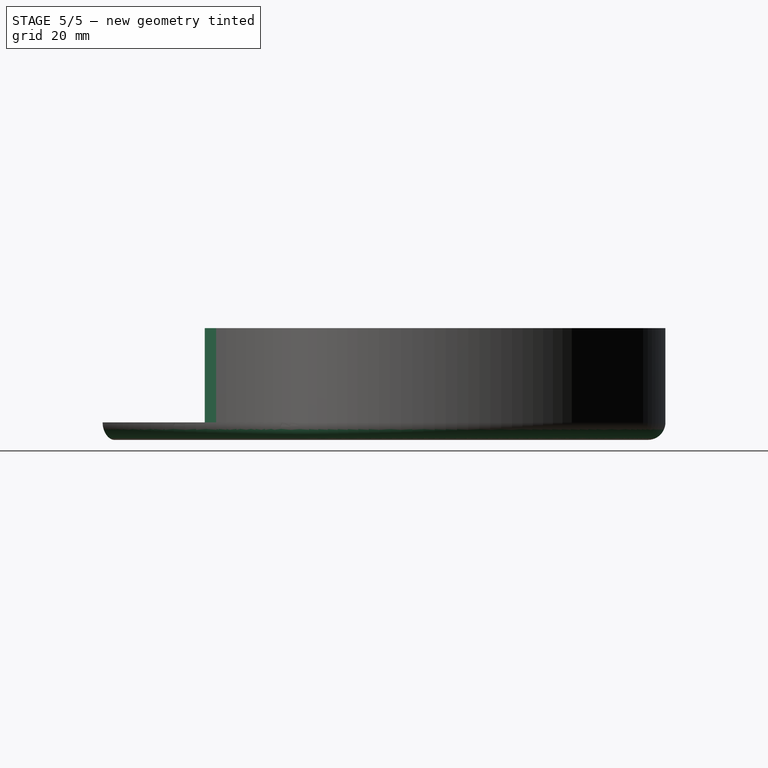
[diagram: stage 5 of 5 — right view after this stage's code; geometry added in this stage tinted green]
FEATURE [Sketcher::SketchObject] Sketch017
  FullyConstrained = true
  MapMode = 5
  Placement = pos=(0,0,5) rot=(0,0,1;0rad)
  Support = -> [Pad003]
  expr: Constraints[1] = Spreadsheet.M3BoltBodyRadius
  sketch-geometry (2):
    g0: Circle CenterX=-2.2 CenterY=-45.4 CenterZ=0 NormalX=0 NormalY=0 NormalZ=1 AngleXU=0 Radius=6
    g1: Circle CenterX=-2.2 CenterY=-45.4 CenterZ=0 NormalX=0 NormalY=0 NormalZ=1 AngleXU=0 Radius=1.7
  constraints (5):
    c: Coincident(g1,g0)
    c: Radius(g1) = 1.7
    c: Radius(g0) = 6
    c: DistanceY(g0,g-1) = 45.4
    c: DistanceX(g0,g-1) = 2.2
FEATURE [PartDesign::Pad] Pad004
  BaseFeature = -> Pad003
  Direction = (1,1,1)
  Length = 9
  Length2 = 100
  Profile = -> Sketch017
  Refine = true
  Type = 0
FEATURE [PartDesign::Plane] DatumPlane004
  AttachmentOffset = pos=(0,0,-4.5) rot=(0,0,1;0rad)
  Length = 168.771
  MapMode = 5
  Placement = pos=(0,0,9.5) rot=(0,0,1;0rad)
  ResizeMode = 0
  Support = -> [Pad004]
  Width = 328.56
FEATURE [Sketcher::SketchObject] Sketch018
  ExternalGeometry = -> [Pad004]
  FullyConstrained = true
  MapMode = 5
  Placement = pos=(0,0,9.5) rot=(0,0,1;0rad)
  Support = -> [DatumPlane004]
  expr: Constraints[19] = Spreadsheet.M3NutCircumradius
  sketch-geometry (10):
    g0: LineSegment StartX=1.15 StartY=-45.4 StartZ=0 EndX=-0.525 EndY=-42.4988 EndZ=0
    g1: LineSegment StartX=-0.525 StartY=-42.4988 StartZ=0 EndX=-3.875 EndY=-42.4988 EndZ=0
    g2: LineSegment StartX=-3.875 StartY=-42.4988 StartZ=0 EndX=-5.55 EndY=-45.4 EndZ=0
    g3: LineSegment StartX=-5.55 StartY=-45.4 StartZ=0 EndX=-3.875 EndY=-48.3012 EndZ=0
    g4: LineSegment StartX=-3.875 StartY=-48.3012 StartZ=0 EndX=-0.525 EndY=-48.3012 EndZ=0
    g5: LineSegment StartX=-0.525 StartY=-48.3012 StartZ=0 EndX=1.15 EndY=-45.4 EndZ=0
    g6: Circle CenterX=-2.2 CenterY=-45.4 CenterZ=0 NormalX=0 NormalY=0 NormalZ=1 AngleXU=0 Radius=3.35
    g7: LineSegment StartX=-0.525 StartY=-42.4988 StartZ=0 EndX=-10.525 EndY=-42.4988 EndZ=0
    g8: LineSegment StartX=-10.525 StartY=-42.4988 StartZ=0 EndX=-10.525 EndY=-48.3012 EndZ=0
    g9: LineSegment StartX=-10.525 StartY=-48.3012 StartZ=0 EndX=-0.525 EndY=-48.3012 EndZ=0
  constraints (24):
    c: Coincident(g0,g1)
    c: Coincident(g1,g2)
    c: Coincident(g2,g3)
    c: Coincident(g3,g4)
    c: Coincident(g4,g5)
    c: Coincident(g5,g0)
    c: Equal(g0, g1-g5) x5
    c: PointOnObject(g0,g6)
    c: PointOnObject(g1,g6)
    c: PointOnObject(g2,g6)
    c: PointOnObject(g3,g6)
    c: PointOnObject(g4,g6)
    c: PointOnObject(g5,g6)
    c: Coincident(g6,g-3)
    c: Horizontal(g1)
    c: Radius(g6) = 3.35
    c: Coincident(g0,g7)
    c: Horizontal(g7)
    c: Coincident(g7,g8)
    c: Coincident(g8,g9)
    c: Coincident(g9,g5)
    c: Horizontal(g9)
    c: Vertical(g8)
    c: DistanceX(g7,g7) = 10
FEATURE [PartDesign::Pocket] Pocket009
  BaseFeature = -> Pad004
  Length = 3
  Length2 = 100
  Midplane = true
  Profile = -> Sketch018
  Refine = true
  Type = 0
  expr: Length = Spreadsheet.M3NutThickness
FEATURE [PartDesign::Line] DatumLine002
  AttacherType = Attacher::AttachEngineLine
  AttachmentOffset = pos=(0,80,0) rot=(0,0,1;0rad)
  Length = 20
  MapMode = 29
  Placement = pos=(0,80,-2.66e-14) rot=(0,0,1;0rad)
  ResizeMode = 0
  Support = -> [Z_Axis]
FEATURE [PartDesign::LinearPattern] LinearPattern
  Direction = -> Y_Axis
  Length = 28
  Occurrences = 2
  Refine = true
FEATURE [PartDesign::PolarPattern] PolarPattern
  Angle = 360
  Axis = -> DatumLine002
  Occurrences = 2
  Refine = true
FEATURE [PartDesign::MultiTransform] MultiTransform
  BaseFeature = -> Pocket009
  Originals = -> [Pad004,Pocket009]
  Refine = true
  Transformations = -> [LinearPattern,PolarPattern]
FEATURE [Sketcher::SketchObject] Sketch019
  FullyConstrained = true
  MapMode = 5
  Placement = pos=(0,0,0) rot=(1,0,0;3.14159rad)
  Support = -> [MultiTransform]
  expr: Constraints[6] = Spreadsheet.MagnetRadius
  sketch-geometry (3):
    g0: Circle CenterX=0 CenterY=-214.5 CenterZ=0 NormalX=0 NormalY=0 NormalZ=1 AngleXU=0 Radius=4.2
    g1: Circle CenterX=0 CenterY=-80 CenterZ=0 NormalX=0 NormalY=0 NormalZ=1 AngleXU=0 Radius=4.2
    g2: Circle CenterX=0 CenterY=54.5 CenterZ=0 NormalX=0 NormalY=0 NormalZ=1 AngleXU=0 Radius=4.2
  constraints (9):
    c: PointOnObject(g1,g-2)
    c: PointOnObject(g2,g-2)
    c: DistanceY(g1,g2) = 134.5
    c: DistanceY(g0,g1) = 134.5
    c: Equal(g1,g0)
    c: Equal(g0,g2)
    c: Radius(g2) = 4.2
    c: DistanceY(g-1,g2) = 54.5
    c: PointOnObject(g0,g-2)
FEATURE [PartDesign::Pocket] Pocket010
  BaseFeature = -> MultiTransform
  Length = 1.1
  Length2 = 100
  Profile = -> Sketch019
  Refine = true
  Type = 0
  expr: Length = Spreadsheet.MagnetThickness
FEATURE [PartDesign::Fillet] Fillet
  Base = -> Pocket010 [Edge221,Edge223,Edge225,Edge226]
  BaseFeature = -> Pocket010
  Radius = 5
  Refine = true
  SupportTransform = false
FEATURE [PartDesign::CoordinateSystem] LCS_Art2BodyB
  AttacherType = Attacher::AttachEngine3D
  AttachmentOffset = pos=(0,0,21) rot=(0,0,1;0rad)
  MapMode = 11
  Placement = pos=(0,2e-15,32) rot=(0,0,1;1.5708rad)
  Support = -> [Fillet]
FEATURE [PartDesign::CoordinateSystem] LCS_OpticSensor
  AttacherType = Attacher::AttachEngine3D
  MapMode = 45
  Placement = pos=(-2.2,-31.4,14) rot=(0,0,1;0rad)
  Support = -> [Fillet]
FEATURE [PartDesign::CoordinateSystem] LCS_OpticSensor1
  AttacherType = Attacher::AttachEngine3D
  MapMode = 45
  Placement = pos=(2.2,191.4,14) rot=(0,0,1;0rad)
  Support = -> [Fillet]
FEATURE [PartDesign::CoordinateSystem] LCS_Bearing
  AttacherType = Attacher::AttachEngine3D
  MapMode = 11
  Placement = pos=(1.78e-14,160,9) rot=(0,0,1;1.5708rad)
  Support = -> [Fillet]
FEATURE [PartDesign::CoordinateSystem] LCS_BearingFix
  AttacherType = Attacher::AttachEngine3D
  MapMode = 45
  Placement = pos=(2.46e-14,160,4) rot=(0,0,1;1.5708rad)
  Support = -> [Fillet]
FEATURE [PartDesign::CoordinateSystem] LCS_Bearing001
  AttacherType = Attacher::AttachEngine3D
  MapMode = 11
  Placement = pos=(0,2e-15,9) rot=(0,0,1;1.5708rad)
  Support = -> [Fillet]
FEATURE [PartDesign::CoordinateSystem] LCS_BearingFix001
  AttacherType = Attacher::AttachEngine3D
  MapMode = 45
  Placement = pos=(9.3e-15,0,4) rot=(0,0,1;1.5708rad)
  Support = -> [Fillet]
FEATURE [PartDesign::CoordinateSystem] LCS_Magnet
  AttacherType = Attacher::AttachEngine3D
  MapMode = 11
  Placement = pos=(0,214.5,1.1) rot=(0.707107,-0.707107,0;3.14159rad)
  Support = -> [Fillet]
FEATURE [PartDesign::CoordinateSystem] LCS_Magnet1
  AttacherType = Attacher::AttachEngine3D
  MapMode = 11
  Placement = pos=(0,80,1.1) rot=(0.707107,-0.707107,0;3.14159rad)
  Support = -> [Fillet]
FEATURE [PartDesign::CoordinateSystem] LCS_Magnet2
  AttacherType = Attacher::AttachEngine3D
  MapMode = 11
  Placement = pos=(0,-54.5,1.1) rot=(0.707107,-0.707107,0;3.14159rad)
  Support = -> [Fillet]
FEATURE [PartDesign::Line] HoleAxis_1
  AttacherType = Attacher::AttachEngineLine
  Length = 4.79083
  MapMode = 19
  Placement = pos=(28.5,73.5,2.9) rot=(0,0,1;0rad)
  ResizeMode = 1
  Support = -> [Fillet]
FEATURE [PartDesign::Line] HoleAxis_2
  AttacherType = Attacher::AttachEngineLine
  Length = 4.79083
  MapMode = 19
  Placement = pos=(28.5,86.5,2.9) rot=(0,0,1;0rad)
  ResizeMode = 1
  Support = -> [Fillet]
FEATURE [PartDesign::Line] HoleAxis_3
  AttacherType = Attacher::AttachEngineLine
  Length = 4.79083
  MapMode = 19
  Placement = pos=(-28.5,73.5,2.9) rot=(0,0,1;0rad)
  ResizeMode = 1
  Support = -> [Fillet]
FEATURE [PartDesign::Line] HoleAxis_4
  AttacherType = Attacher::AttachEngineLine
  Length = 4.79083
  MapMode = 19
  Placement = pos=(-28.5,86.5,2.9) rot=(0,0,1;0rad)
  ResizeMode = 1
  Support = -> [Fillet]
FEATURE [PartDesign::Line] HoleAxis_5
  AttacherType = Attacher::AttachEngineLine
  Length = 4.79083
  MapMode = 19
  Placement = pos=(0,-55,22) rot=(0,0,1;0rad)
  ResizeMode = 1
  Support = -> [Fillet]
FEATURE [PartDesign::Line] HoleAxis_6
  AttacherType = Attacher::AttachEngineLine
  Length = 4.79083
  MapMode = 19
  Placement = pos=(-2.2,-17.4,11) rot=(-1,0,0;3.14159rad)
  ResizeMode = 1
  Support = -> [Fillet]
FEATURE [PartDesign::Line] HoleAxis_7
  AttacherType = Attacher::AttachEngineLine
  Length = 4.79083
  MapMode = 19
  Placement = pos=(-11,0,7) rot=(-1,0,0;3.14159rad)
  ResizeMode = 1
  Support = -> [Fillet]
FEATURE [PartDesign::Line] HoleAxis_8
  AttacherType = Attacher::AttachEngineLine
  Length = 4.79083
  MapMode = 19
  Placement = pos=(11,0,7) rot=(-1,0,0;3.14159rad)
  ResizeMode = 1
  Support = -> [Fillet]
FEATURE [PartDesign::Line] HoleAxis_9
  AttacherType = Attacher::AttachEngineLine
  Length = 4.79083
  MapMode = 19
  Placement = pos=(11,160,7) rot=(-1,0,0;3.14159rad)
  ResizeMode = 1
  Support = -> [Fillet]
FEATURE [PartDesign::Line] HoleAxis_10
  AttacherType = Attacher::AttachEngineLine
  Length = 4.79083
  MapMode = 19
  Placement = pos=(-11,160,7) rot=(-1,0,0;3.14159rad)
  ResizeMode = 1
  Support = -> [Fillet]
FEATURE [PartDesign::Line] HoleAxis_11
  AttacherType = Attacher::AttachEngineLine
  Length = 4.79083
  MapMode = 19
  Placement = pos=(2.2,177.4,11) rot=(0,-1,0;3.14159rad)
  ResizeMode = 1
  Support = -> [Fillet]
FEATURE [PartDesign::Line] HoleAxis_12
  AttacherType = Attacher::AttachEngineLine
  Length = 4.79083
  MapMode = 19
  Placement = pos=(2.2,205.4,11) rot=(0,-1,0;3.14159rad)
  ResizeMode = 1
  Support = -> [Fillet]
FEATURE [PartDesign::Line] HoleAxis_13
  AttacherType = Attacher::AttachEngineLine
  Length = 4.79083
  MapMode = 19
  Placement = pos=(3e-14,215,22) rot=(0,0,1;0rad)
  ResizeMode = 1
  Support = -> [Fillet]
FEATURE [PartDesign::Line] HoleAxis_14
  AttacherType = Attacher::AttachEngineLine
  Length = 4.79083
  MapMode = 19
  Placement = pos=(-2.2,-45.4,11) rot=(-1,0,0;3.14159rad)
  ResizeMode = 1
  Support = -> [Fillet]
FEATURE [PartDesign::Body] Body  label="Art2BodyB"
  Group = -> [Sketch,Pad,Thickness,Sketch001,Pad001,Sketch002,Pocket,DatumPlane,Sketch003,Pocket001,Sketch005,Revolution,Sketch006,Pocket002,Sketch007,Pocket003,Sketch008,Pocket004,Sketch009,Pocket005,Sketch010,Pocket006,DatumPlane001,Sketch011,DatumLine,Groove,DatumPlane002,Mirrored,Sketch012,Pad002,DatumPlane003,Sketch013,DatumLine001,Groove001,Sketch014,Pocket007,Sketch015,Pocket008,Sketch016,Pad003,+36 more]
  Origin = -> Origin
  Tip = -> Fillet
FEATURE [Part::Refine] Fillet001
  Source = -> Fillet
FEATURE [PartDesign::FeatureBase] BaseFeature
  BaseFeature = -> Fillet001
FEATURE [Sketcher::SketchObject] Sketch020
  FullyConstrained = true
  MapMode = 5
  Placement = pos=(0,0,32) rot=(0,0,1;0rad)
  Support = -> [BaseFeature]
  sketch-geometry (1):
    g0: Circle CenterX=0 CenterY=0 CenterZ=0 NormalX=0 NormalY=0 NormalZ=1 AngleXU=0 Radius=75
  constraints (2):
    c: Coincident(g0,g-1)
    c: Radius(g0) = 75
FEATURE [PartDesign::Pocket] Pocket011
  BaseFeature = -> BaseFeature
  Length = 5
  Length2 = 100
  Profile = -> Sketch020
  Refine = true
  Type = 1
FEATURE [Sketcher::SketchObject] Sketch021
  ExternalGeometry = -> [Pocket011]
  FullyConstrained = true
  MapMode = 5
  Placement = pos=(0,0,32) rot=(0,0,1;0rad)
  Support = -> [Pocket011]
  sketch-geometry (4):
    g0: ArcOfCircle CenterX=0 CenterY=160 CenterZ=0 NormalX=0 NormalY=0 NormalZ=1 AngleXU=0 Radius=75 StartAngle=3.98266 EndAngle=5.44212
    g1: LineSegment StartX=-50 StartY=104.098 StartZ=0 EndX=-50 EndY=39.0983 EndZ=0
    g2: LineSegment StartX=-50 StartY=39.0983 StartZ=0 EndX=50 EndY=39.0983 EndZ=0
    g3: LineSegment StartX=50 StartY=39.0983 StartZ=0 EndX=50 EndY=104.098 EndZ=0
  constraints (11):
    c: Coincident(g0,g-3)
    c: Coincident(g0,g1)
    c: Coincident(g1,g2)
    c: Coincident(g2,g3)
    c: Coincident(g3,g0)
    c: Vertical(g3)
    c: Vertical(g1)
    c: DistanceX(g2,g2) = 100
    c: DistanceY(g1,g1) = 65
    c: Symmetric(g1,g2,g-2)
    c: Radius(g0) = 75
FEATURE [PartDesign::Pocket] Pocket012
  BaseFeature = -> Pocket011
  Length = 27
  Length2 = 100
  Profile = -> Sketch021
  Refine = true
  Type = 0
FEATURE [PartDesign::Body] Body001  label="Art2BodyB_Splitted_B"
  BaseFeature = -> Fillet001
  Group = -> [BaseFeature,Sketch020,Pocket011,Sketch021,Pocket012]
  Origin = -> Origin001
  Tip = -> Pocket012
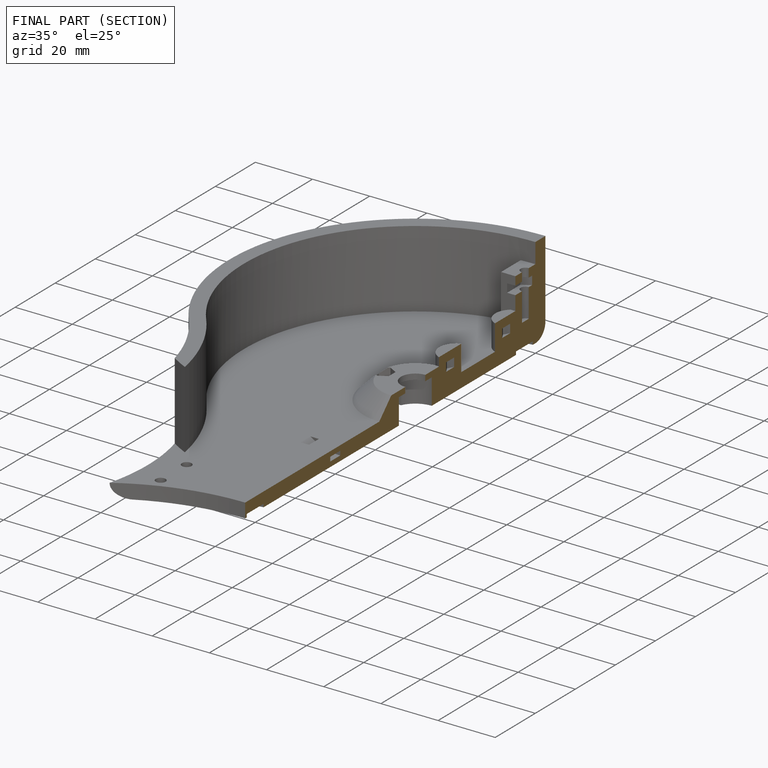
[diagram: finished part — half-section view (interior)]
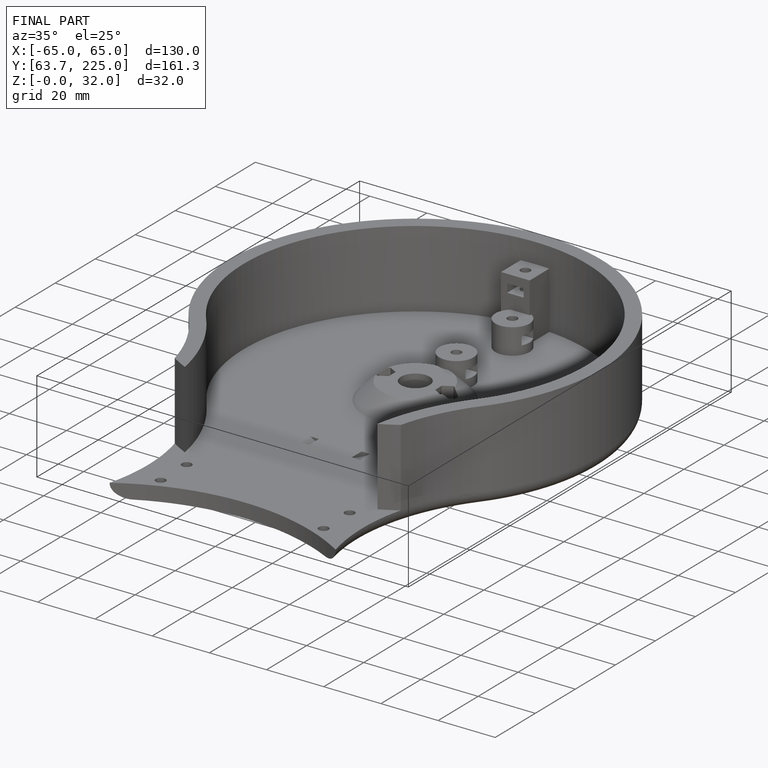
[diagram: finished part — iso view with bounding-box wireframe]
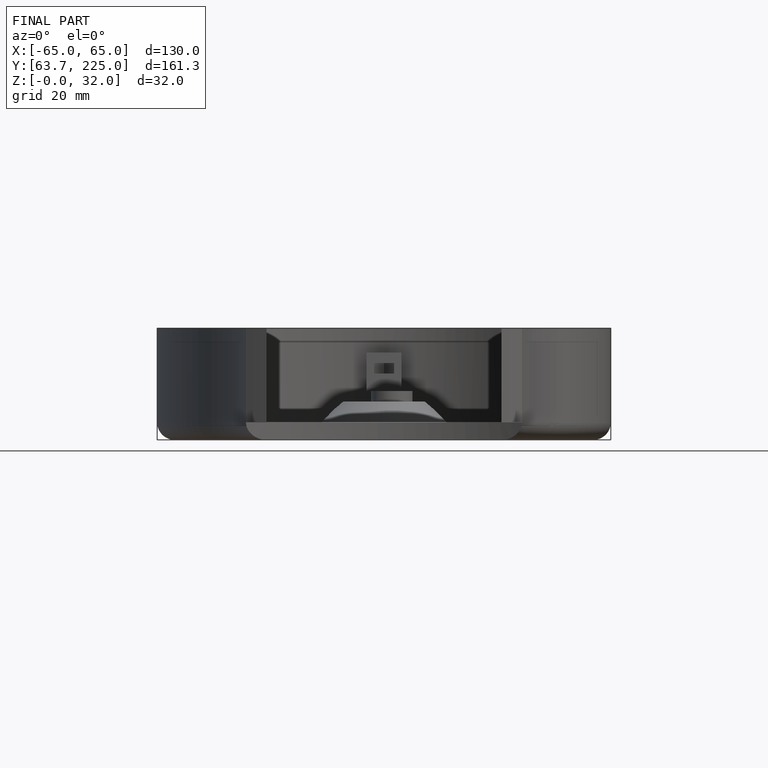
[diagram: finished part — front view with bounding-box wireframe]
